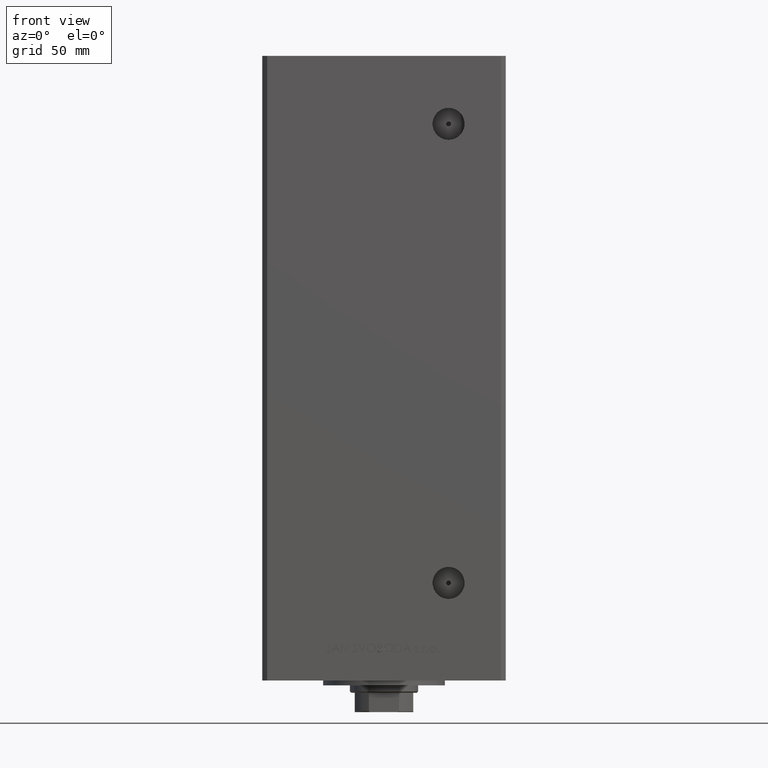
[diagram: clean part render]
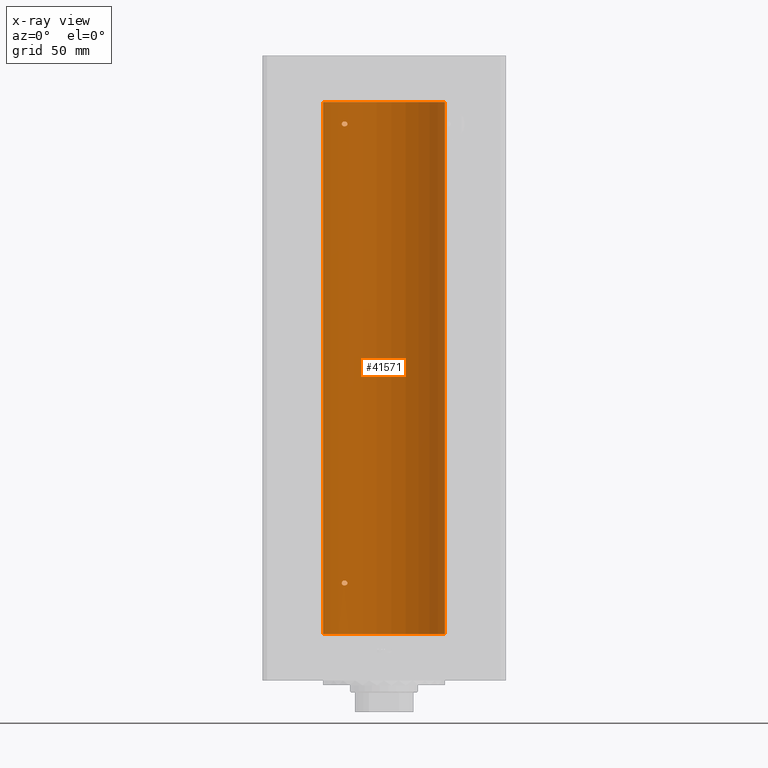
[diagram: x-ray — body ghosted, one internal face saturated and labeled with its STEP entity id]
A machine part, front view, then the same camera in x-ray: the body is ghosted and one INTERNAL B-rep face — a face not visible from any outside direction — is saturated and labeled: STEP entity #41571.
In plain terms, the highlighted cylindrical surface (partial cylindrical patch) has radius 25 mm, axis along (-0, -0, -1).
Its self-contained STEP definition (entity closure, byte-faithful):
#153 = EDGE_CURVE ( 'NONE', #43243, #848, #22379, .T. ) ;
#848 = VERTEX_POINT ( 'NONE', #13926 ) ;
#1626 = CARTESIAN_POINT ( 'NONE',  ( -15.34666241858321634, 19.73581294411414078, 20.31212246053760495 ) ) ;
#1656 = EDGE_CURVE ( 'NONE', #18041, #20741, #37246, .T. ) ;
#1858 = CARTESIAN_POINT ( 'NONE',  ( -17.05007833789895955, 18.28384926940283606, 21.70137399901213371 ) ) ;
#1912 = EDGE_LOOP ( 'NONE', ( #27817, #24811, #28414, #9095 ) ) ;
#2296 = CARTESIAN_POINT ( 'NONE',  ( -15.34624284195505162, 19.73614442075940190, 210.1876185318512853 ) ) ;
#2597 = CARTESIAN_POINT ( 'NONE',  ( -15.70535969280557254, 19.45169171760800708, 21.89896077211249192 ) ) ;
#2758 = VECTOR ( 'NONE', #48998, 1000.000000000000000 ) ;
#2832 = CIRCLE ( 'NONE', #31921, 25.00000000000000000 ) ;
#3228 = CARTESIAN_POINT ( 'NONE',  ( -25.00000000000000000, 0.000000000000000000, 218.5000000000000000 ) ) ;
#4403 = CARTESIAN_POINT ( 'NONE',  ( -15.06722189748651175, 19.94943357555936458, 20.67598032487887849 ) ) ;
#4908 = CARTESIAN_POINT ( 'NONE',  ( -15.10490010356607904, 19.92096840819818127, 20.60376667132250716 ) ) ;
#5155 = CARTESIAN_POINT ( 'NONE',  ( -15.23538646979301170, 19.82157806413531631, 20.41199989528276149 ) ) ;
#5645 = EDGE_CURVE ( 'NONE', #19278, #15020, #40044, .T. ) ;
#5753 = EDGE_CURVE ( 'NONE', #848, #43243, #49721, .T. ) ;
#6151 = CARTESIAN_POINT ( 'NONE',  ( -15.01476641895664876, 19.98894406010705183, 21.16879456340133459 ) ) ;
#6408 = CARTESIAN_POINT ( 'NONE',  ( -15.00000000000021316, 19.99999999999998934, 21.08403880362416061 ) ) ;
#6451 = CARTESIAN_POINT ( 'NONE',  ( -16.34293146994552259, 18.91921593628409681, 208.4973425906725879 ) ) ;
#6586 = CARTESIAN_POINT ( 'NONE',  ( -17.05007833789892047, 18.28384926940287869, 210.2013739990121337 ) ) ;
#6931 = LINE ( 'NONE', #37843, #2758 ) ;
#7780 = CARTESIAN_POINT ( 'NONE',  ( -25.00000000000000000, 0.000000000000000000, 0.000000000000000000 ) ) ;
#9095 = ORIENTED_EDGE ( 'NONE', *, *, #22651, .F. ) ;
#9716 = CARTESIAN_POINT ( 'NONE',  ( -15.34624284195510135, 19.73614442075936992, 21.68761853185130306 ) ) ;
#9954 = CARTESIAN_POINT ( 'NONE',  ( -16.72476285461321766, 18.58415905903079945, 21.94494476079569978 ) ) ;
#10000 = CARTESIAN_POINT ( 'NONE',  ( -15.10490010356605595, 19.92096840819819903, 209.1037666713224894 ) ) ;
#10148 = CARTESIAN_POINT ( 'NONE',  ( -16.08745393861402917, 19.13692152169251059, 210.4965015099869277 ) ) ;
#10213 = CARTESIAN_POINT ( 'NONE',  ( -15.23594348686703448, 19.82115246225713179, 21.58872193268582151 ) ) ;
#10400 = CARTESIAN_POINT ( 'NONE',  ( -15.00000000000018474, 20.00000000000002487, 209.5840388036241109 ) ) ;
#10618 = EDGE_LOOP ( 'NONE', ( #28007, #11943 ) ) ;
#11943 = ORIENTED_EDGE ( 'NONE', *, *, #153, .F. ) ;
#12262 = CARTESIAN_POINT ( 'NONE',  ( -16.34293146994555812, 18.91921593628406129, 19.99734259067261277 ) ) ;
#13181 = VECTOR ( 'NONE', #18484, 1000.000000000000000 ) ;
#13806 = CARTESIAN_POINT ( 'NONE',  ( -17.05249165747618534, 18.28208333366438509, 208.7922192200363725 ) ) ;
#13926 = CARTESIAN_POINT ( 'NONE',  ( -17.34935157289806185, 17.99999999999981526, 209.5000000000001137 ) ) ;
#14295 = CARTESIAN_POINT ( 'NONE',  ( -15.01482636753733146, 19.98889854010115741, 209.3312026610076941 ) ) ;
#14504 = CARTESIAN_POINT ( 'NONE',  ( -15.10490800566739011, 19.92096305044238491, 21.39629317404425279 ) ) ;
#14546 = CARTESIAN_POINT ( 'NONE',  ( -15.06722189748648866, 19.94943357555938590, 209.1759803248789069 ) ) ;
#14781 = CARTESIAN_POINT ( 'NONE',  ( -17.34935157289806185, 17.99999999999981526, 209.5000000000001137 ) ) ;
#15020 = VERTEX_POINT ( 'NONE', #28742 ) ;
#16068 = CARTESIAN_POINT ( 'NONE',  ( -17.34935157289749696, 17.99999999999998579, 20.82899836042580688 ) ) ;
#16636 = AXIS2_PLACEMENT_3D ( 'NONE', #36194, #24011, #35180 ) ;
#16721 = DIRECTION ( 'NONE',  ( -0.000000000000000000, 0.000000000000000000, 1.000000000000000000 ) ) ;
#17225 = DIRECTION ( 'NONE',  ( 1.000000000000000000, 0.000000000000000000, 0.000000000000000000 ) ) ;
#18041 = VERTEX_POINT ( 'NONE', #3228 ) ;
#18336 = CARTESIAN_POINT ( 'NONE',  ( -16.71492528194901794, 18.59135325782701642, 208.5801415583420351 ) ) ;
#18484 = DIRECTION ( 'NONE',  ( -0.000000000000000000, -0.000000000000000000, -1.000000000000000000 ) ) ;
#19278 = VERTEX_POINT ( 'NONE', #29970 ) ;
#19445 = CARTESIAN_POINT ( 'NONE',  ( 25.00000000000000000, 3.061616997868383043E-15, 218.5000000000000000 ) ) ;
#19845 = CARTESIAN_POINT ( 'NONE',  ( -17.34935157289810093, 17.99999999999978328, 21.00000000000008882 ) ) ;
#20343 = CARTESIAN_POINT ( 'NONE',  ( -15.01482636753736166, 19.98889854010113254, 20.83120266100769769 ) ) ;
#20728 = FACE_BOUND ( 'NONE', #26347, .T. ) ;
#20741 = VERTEX_POINT ( 'NONE', #7780 ) ;
#20943 = CIRCLE ( 'NONE', #30610, 25.00000000000000000 ) ;
#21018 = ORIENTED_EDGE ( 'NONE', *, *, #5645, .F. ) ;
#21350 = CARTESIAN_POINT ( 'NONE',  ( -17.34935157289749696, 17.99999999999998224, 21.17097369060632417 ) ) ;
#21596 = CARTESIAN_POINT ( 'NONE',  ( -17.19010376497224968, 18.15221652163108601, 21.53567012356800703 ) ) ;
#21784 = CARTESIAN_POINT ( 'NONE',  ( -16.72476285461317502, 18.58415905903083498, 210.4449447607957211 ) ) ;
#21845 = CARTESIAN_POINT ( 'NONE',  ( -16.08745393861406825, 19.13692152169247507, 21.99650150998692766 ) ) ;
#21891 = CARTESIAN_POINT ( 'NONE',  ( -15.34666241858318259, 19.73581294411415854, 208.8121224605376369 ) ) ;
#22022 = CARTESIAN_POINT ( 'NONE',  ( -17.30163983552688833, 18.04615713653367948, 209.8360074727278572 ) ) ;
#22279 = CARTESIAN_POINT ( 'NONE',  ( -15.70535969280552280, 19.45169171760802485, 210.3989607721124173 ) ) ;
#22379 = B_SPLINE_CURVE_WITH_KNOTS ( 'NONE', 3,
 ( #33188, #10400, #44849, #33433, #32941, #36998, #2296, #25827, #22279, #33941, #10148, #41301, #21784, #48408, #6586, #45591, #49392, #22022, #25084, #48651 ),
 .UNSPECIFIED., .F., .F.,
 ( 4, 2, 2, 2, 2, 2, 2, 2, 2, 4 ),
 ( 0.004032696862986557759, 0.004284699222246954667, 0.004536701581507351574, 0.005040706300028082940, 0.005544711018548810835, 0.006048715737069539598, 0.007056725174110996257, 0.007308727533371349797, 0.007560729892631701601, 0.008064734611152412150 ),
 .UNSPECIFIED. ) ;
#22382 = CARTESIAN_POINT ( 'NONE',  ( -14.99999999999999112, 20.00000000000000711, 209.5000000000000000 ) ) ;
#22651 = EDGE_CURVE ( 'NONE', #44421, #20741, #20943, .T. ) ;
#23634 = CARTESIAN_POINT ( 'NONE',  ( -15.00000000000002842, 19.99999999999998224, 20.99999999999998934 ) ) ;
#24011 = DIRECTION ( 'NONE',  ( -0.000000000000000000, -0.000000000000000000, -1.000000000000000000 ) ) ;
#24811 = ORIENTED_EDGE ( 'NONE', *, *, #39551, .T. ) ;
#25084 = CARTESIAN_POINT ( 'NONE',  ( -17.34935157289746854, 18.00000000000001421, 209.6709736906063029 ) ) ;
#25393 = CARTESIAN_POINT ( 'NONE',  ( -15.95796937689564565, 19.24499537862563869, 21.97577309965217651 ) ) ;
#25642 = CARTESIAN_POINT ( 'NONE',  ( -15.00000000000002842, 19.99999999999998224, 20.99999999999998934 ) ) ;
#25827 = CARTESIAN_POINT ( 'NONE',  ( -15.58230678163759642, 19.55030131031898577, 210.3437394867029582 ) ) ;
#26179 = CARTESIAN_POINT ( 'NONE',  ( -17.30269557861141294, 18.04515136187502478, 209.1660420817557053 ) ) ;
#26347 = EDGE_LOOP ( 'NONE', ( #21018, #37755 ) ) ;
#26424 = CARTESIAN_POINT ( 'NONE',  ( -17.34935157289747210, 18.00000000000002132, 209.3289983604257998 ) ) ;
#27690 = CARTESIAN_POINT ( 'NONE',  ( -15.95808436639362782, 19.24489366819297942, 20.02426087884952821 ) ) ;
#27817 = ORIENTED_EDGE ( 'NONE', *, *, #37067, .F. ) ;
#28007 = ORIENTED_EDGE ( 'NONE', *, *, #5753, .F. ) ;
#28414 = ORIENTED_EDGE ( 'NONE', *, *, #1656, .T. ) ;
#28717 = CARTESIAN_POINT ( 'NONE',  ( -16.71492528194906768, 18.59135325782697734, 20.08014155834204217 ) ) ;
#28742 = CARTESIAN_POINT ( 'NONE',  ( -15.00000000000002842, 19.99999999999998224, 20.99999999999998934 ) ) ;
#29240 = CARTESIAN_POINT ( 'NONE',  ( -16.46844752485324648, 18.81003400474354947, 208.5115443190389612 ) ) ;
#29367 = DIRECTION ( 'NONE',  ( 1.000000000000000000, 0.000000000000000000, 0.000000000000000000 ) ) ;
#29486 = CARTESIAN_POINT ( 'NONE',  ( -15.70664578139651546, 19.45064696206092947, 208.6005795994921925 ) ) ;
#29735 = CARTESIAN_POINT ( 'NONE',  ( -17.15234217094406333, 18.18812579706696653, 208.8965730437749073 ) ) ;
#29970 = CARTESIAN_POINT ( 'NONE',  ( -17.34935157289810093, 17.99999999999978328, 21.00000000000008882 ) ) ;
#30471 = VERTEX_POINT ( 'NONE', #19445 ) ;
#30610 = AXIS2_PLACEMENT_3D ( 'NONE', #32427, #16721, #17225 ) ;
#30615 = CARTESIAN_POINT ( 'NONE',  ( -25.00000000000000000, 0.000000000000000000, 218.5000000000000000 ) ) ;
#31379 = CYLINDRICAL_SURFACE ( 'NONE', #16636, 25.00000000000000000 ) ;
#31921 = AXIS2_PLACEMENT_3D ( 'NONE', #48146, #32433, #29367 ) ;
#32427 = CARTESIAN_POINT ( 'NONE',  ( 0.000000000000000000, 0.000000000000000000, 0.000000000000000000 ) ) ;
#32433 = DIRECTION ( 'NONE',  ( -0.000000000000000000, 0.000000000000000000, 1.000000000000000000 ) ) ;
#32515 = CARTESIAN_POINT ( 'NONE',  ( -16.83415218046515349, 18.48332662461723785, 20.13431726628115115 ) ) ;
#32941 = CARTESIAN_POINT ( 'NONE',  ( -15.10490800566735103, 19.92096305044241689, 209.8962931740442457 ) ) ;
#33188 = CARTESIAN_POINT ( 'NONE',  ( -14.99999999999999112, 20.00000000000000711, 209.5000000000000000 ) ) ;
#33433 = CARTESIAN_POINT ( 'NONE',  ( -15.06763582406798818, 19.94912143246363811, 209.8250699387717475 ) ) ;
#33941 = CARTESIAN_POINT ( 'NONE',  ( -15.95796937689560480, 19.24499537862567422, 210.4757730996522298 ) ) ;
#35180 = DIRECTION ( 'NONE',  ( -1.000000000000000000, 0.000000000000000000, 0.000000000000000000 ) ) ;
#36068 = CARTESIAN_POINT ( 'NONE',  ( -17.05249165747622442, 18.28208333366434601, 20.29221922003641509 ) ) ;
#36194 = CARTESIAN_POINT ( 'NONE',  ( 0.000000000000000000, 0.000000000000000000, 218.5000000000000000 ) ) ;
#36560 = CARTESIAN_POINT ( 'NONE',  ( -16.46913072925707056, 18.81168496547888580, 22.00577755881141329 ) ) ;
#36814 = CARTESIAN_POINT ( 'NONE',  ( -17.34935157289810093, 17.99999999999978328, 21.00000000000008882 ) ) ;
#36998 = CARTESIAN_POINT ( 'NONE',  ( -15.23594348686699185, 19.82115246225716021, 210.0887219326858144 ) ) ;
#37067 = EDGE_CURVE ( 'NONE', #30471, #44421, #6931, .T. ) ;
#37246 = LINE ( 'NONE', #30615, #13181 ) ;
#37560 = CARTESIAN_POINT ( 'NONE',  ( -16.99843849356152248, 18.33190197607051886, 21.74683351457564839 ) ) ;
#37755 = ORIENTED_EDGE ( 'NONE', *, *, #40098, .F. ) ;
#37843 = CARTESIAN_POINT ( 'NONE',  ( 25.00000000000000000, 3.061616997868383043E-15, 218.5000000000000000 ) ) ;
#39113 = CARTESIAN_POINT ( 'NONE',  ( -17.30269557861145202, 18.04515136187498570, 20.66604208175573376 ) ) ;
#39551 = EDGE_CURVE ( 'NONE', #30471, #18041, #2832, .T. ) ;
#39621 = CARTESIAN_POINT ( 'NONE',  ( -15.70664578139654566, 19.45064696206090105, 20.10057959949211082 ) ) ;
#39994 = FACE_OUTER_BOUND ( 'NONE', #1912, .T. ) ;
#40044 = B_SPLINE_CURVE_WITH_KNOTS ( 'NONE', 3,
 ( #19845, #16068, #39113, #47968, #36068, #32515, #28717, #43163, #12262, #43928, #27690, #39621, #40129, #1626, #5155, #4908, #4403, #20343, #43676, #23634 ),
 .UNSPECIFIED., .F., .F.,
 ( 4, 2, 2, 2, 2, 2, 2, 2, 2, 4 ),
 ( 2.011680962688586771E-16, 0.0005040871078734975291, 0.001008174215746794047, 0.001512261323620090565, 0.002016348431493386866, 0.002520435539366683384, 0.003024522647239979902, 0.003528609755113272951, 0.003780653309049920342, 0.004032696862986568168 ),
 .UNSPECIFIED. ) ;
#40098 = EDGE_CURVE ( 'NONE', #15020, #19278, #46580, .T. ) ;
#40129 = CARTESIAN_POINT ( 'NONE',  ( -15.58164749401203686, 19.55082150006403907, 20.15667807268518885 ) ) ;
#40377 = CARTESIAN_POINT ( 'NONE',  ( -17.30163983552693452, 18.04615713653364750, 21.33600747272777909 ) ) ;
#40869 = CARTESIAN_POINT ( 'NONE',  ( -17.14593038898733113, 18.19399314418732061, 21.59594488319649130 ) ) ;
#41115 = CARTESIAN_POINT ( 'NONE',  ( -15.58230678163764260, 19.55030131031895380, 21.84373948670293331 ) ) ;
#41301 = CARTESIAN_POINT ( 'NONE',  ( -16.46913072925702792, 18.81168496547891777, 210.5057775588113884 ) ) ;
#41571 = ADVANCED_FACE ( 'NONE', ( #39994, #20728, #43292 ), #31379, .F. ) ;
#41897 = CARTESIAN_POINT ( 'NONE',  ( -15.23538646979298505, 19.82157806413532697, 208.9119998952828041 ) ) ;
#43163 = CARTESIAN_POINT ( 'NONE',  ( -16.46844752485328911, 18.81003400474351039, 20.01154431903891862 ) ) ;
#43243 = VERTEX_POINT ( 'NONE', #44296 ) ;
#43292 = FACE_BOUND ( 'NONE', #10618, .T. ) ;
#43676 = CARTESIAN_POINT ( 'NONE',  ( -15.00000000000022027, 20.00000000000000355, 20.91594745860243165 ) ) ;
#43928 = CARTESIAN_POINT ( 'NONE',  ( -16.08757264251635277, 19.13682698743030386, 20.00344276584819525 ) ) ;
#44173 = CARTESIAN_POINT ( 'NONE',  ( -15.06763582406801483, 19.94912143246361325, 21.32506993877174395 ) ) ;
#44296 = CARTESIAN_POINT ( 'NONE',  ( -14.99999999999999112, 20.00000000000000711, 209.5000000000000000 ) ) ;
#44421 = VERTEX_POINT ( 'NONE', #45600 ) ;
#44708 = CARTESIAN_POINT ( 'NONE',  ( -15.58164749401199956, 19.55082150006405328, 208.6566780726851391 ) ) ;
#44849 = CARTESIAN_POINT ( 'NONE',  ( -15.01476641895662567, 19.98894406010707314, 209.6687945634013488 ) ) ;
#44956 = CARTESIAN_POINT ( 'NONE',  ( -15.00000000000018119, 20.00000000000001421, 209.4159474586024032 ) ) ;
#45212 = CARTESIAN_POINT ( 'NONE',  ( -16.83415218046510731, 18.48332662461726983, 208.6343172662811583 ) ) ;
#45591 = CARTESIAN_POINT ( 'NONE',  ( -17.14593038898727428, 18.19399314418736324, 210.0959448831964664 ) ) ;
#45600 = CARTESIAN_POINT ( 'NONE',  ( 25.00000000000000000, 3.061616997868383043E-15, 0.000000000000000000 ) ) ;
#45699 = CARTESIAN_POINT ( 'NONE',  ( -16.08757264251632080, 19.13682698743034649, 208.5034427658482059 ) ) ;
#46580 = B_SPLINE_CURVE_WITH_KNOTS ( 'NONE', 3,
 ( #25642, #6408, #6151, #44173, #14504, #10213, #9716, #41115, #2597, #25393, #21845, #36560, #9954, #37560, #1858, #40869, #21596, #40377, #21350, #36814 ),
 .UNSPECIFIED., .F., .F.,
 ( 4, 2, 2, 2, 2, 2, 2, 2, 2, 4 ),
 ( 0.004032696862986568168, 0.004284699222246932983, 0.004536701581507298665, 0.005040706300028030031, 0.005544711018548761396, 0.006048715737069493628, 0.007056725174110963297, 0.007308727533371326378, 0.007560729892631690326, 0.008064734611152429497 ),
 .UNSPECIFIED. ) ;
#47968 = CARTESIAN_POINT ( 'NONE',  ( -17.15234217094410596, 18.18812579706693100, 20.39657304377494640 ) ) ;
#48146 = CARTESIAN_POINT ( 'NONE',  ( 0.000000000000000000, 0.000000000000000000, 218.5000000000000000 ) ) ;
#48408 = CARTESIAN_POINT ( 'NONE',  ( -16.99843849356149050, 18.33190197607055794, 210.2468335145757123 ) ) ;
#48651 = CARTESIAN_POINT ( 'NONE',  ( -17.34935157289806185, 17.99999999999981526, 209.5000000000001137 ) ) ;
#48998 = DIRECTION ( 'NONE',  ( -0.000000000000000000, -0.000000000000000000, -1.000000000000000000 ) ) ;
#49251 = CARTESIAN_POINT ( 'NONE',  ( -15.95808436639360117, 19.24489366819300784, 208.5242608788495886 ) ) ;
#49392 = CARTESIAN_POINT ( 'NONE',  ( -17.19010376497220705, 18.15221652163111088, 210.0356701235680248 ) ) ;
#49721 = B_SPLINE_CURVE_WITH_KNOTS ( 'NONE', 3,
 ( #14781, #26424, #26179, #29735, #13806, #45212, #18336, #29240, #6451, #45699, #49251, #29486, #44708, #21891, #41897, #10000, #14546, #14295, #44956, #22382 ),
 .UNSPECIFIED., .F., .F.,
 ( 4, 2, 2, 2, 2, 2, 2, 2, 2, 4 ),
 ( 2.254873622441466949E-16, 0.0005040871078735091300, 0.001008174215746792746, 0.001512261323620076470, 0.002016348431493359978, 0.002520435539366643485, 0.003024522647239927427, 0.003528609755113210501, 0.003780653309049884347, 0.004032696862986557759 ),
 .UNSPECIFIED. ) ;